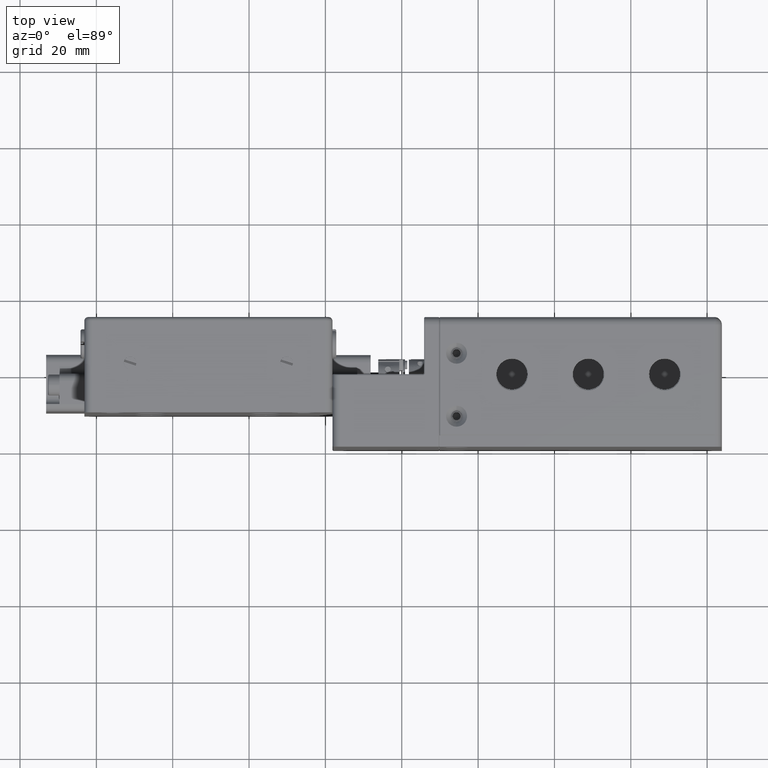
[diagram: clean part render]
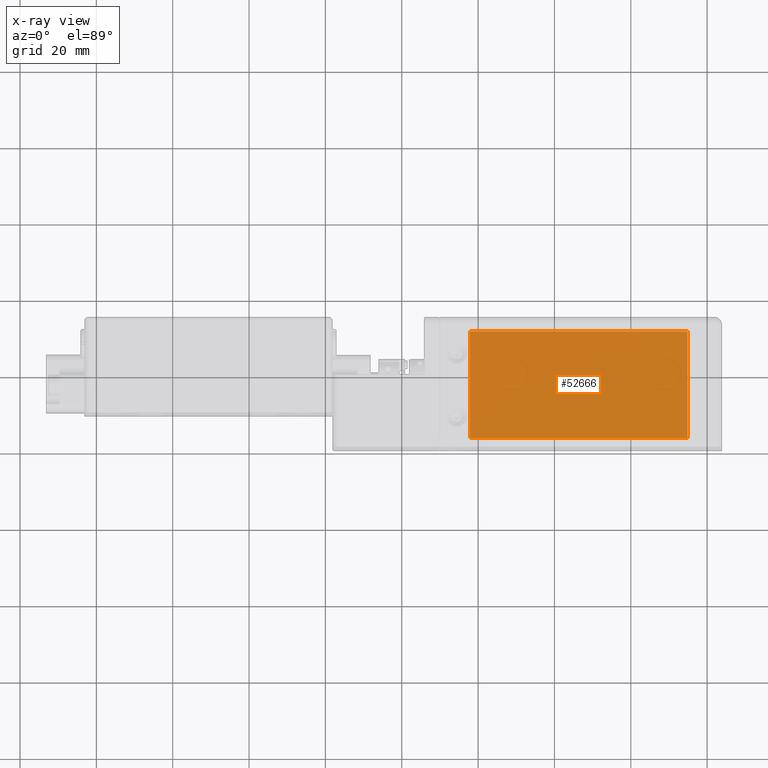
[diagram: x-ray — body ghosted, one internal face saturated and labeled with its STEP entity id]
A machine part, top view, then the same camera in x-ray: the body is ghosted and one INTERNAL B-rep face — a face not visible from any outside direction — is saturated and labeled: STEP entity #52666.
In plain terms, the highlighted planar face has unit normal (0, 0, 1).
Its self-contained STEP definition (entity closure, byte-faithful):
#712 = EDGE_CURVE ( 'NONE', #1862, #24658, #22003, .T. ) ;
#1204 = LINE ( 'NONE', #18175, #8462 ) ;
#1862 = VERTEX_POINT ( 'NONE', #50120 ) ;
#2852 = EDGE_CURVE ( 'NONE', #20213, #37276, #1204, .T. ) ;
#3995 = CARTESIAN_POINT ( 'NONE',  ( -82.15206144933929977, 31.74167847702480572, -14.00000000000000000 ) ) ;
#8462 = VECTOR ( 'NONE', #14005, 1000.000000000000000 ) ;
#10863 = ORIENTED_EDGE ( 'NONE', *, *, #2852, .F. ) ;
#11909 = DIRECTION ( 'NONE',  ( 0.000000000000000000, 0.000000000000000000, 1.000000000000000000 ) ) ;
#12479 = DIRECTION ( 'NONE',  ( 1.224646799147353947E-16, -1.000000000000000000, 0.000000000000000000 ) ) ;
#14005 = DIRECTION ( 'NONE',  ( 1.000000000000000000, 0.000000000000000000, 0.000000000000000000 ) ) ;
#16572 = EDGE_LOOP ( 'NONE', ( #41750, #21553, #35175, #10863 ) ) ;
#18175 = CARTESIAN_POINT ( 'NONE',  ( -82.15206144933929977, 3.741678477024794613, -14.00000000000000000 ) ) ;
#19414 = AXIS2_PLACEMENT_3D ( 'NONE', #29171, #11909, #24448 ) ;
#20166 = CARTESIAN_POINT ( 'NONE',  ( -25.15206144933934951, 3.741678477024794613, -14.00000000000000000 ) ) ;
#20213 = VERTEX_POINT ( 'NONE', #40154 ) ;
#21553 = ORIENTED_EDGE ( 'NONE', *, *, #712, .F. ) ;
#22003 = LINE ( 'NONE', #26729, #24195 ) ;
#23401 = DIRECTION ( 'NONE',  ( 0.000000000000000000, 1.000000000000000000, 0.000000000000000000 ) ) ;
#24195 = VECTOR ( 'NONE', #47323, 1000.000000000000000 ) ;
#24448 = DIRECTION ( 'NONE',  ( 1.000000000000000000, 0.000000000000000000, 0.000000000000000000 ) ) ;
#24658 = VERTEX_POINT ( 'NONE', #3995 ) ;
#26729 = CARTESIAN_POINT ( 'NONE',  ( -82.15206144933929977, 31.74167847702480572, -14.00000000000000000 ) ) ;
#29171 = CARTESIAN_POINT ( 'NONE',  ( -82.15206144933929977, 31.74167847702480572, -14.00000000000000000 ) ) ;
#32791 = PLANE ( 'NONE',  #19414 ) ;
#33348 = FACE_OUTER_BOUND ( 'NONE', #16572, .T. ) ;
#35175 = ORIENTED_EDGE ( 'NONE', *, *, #49436, .F. ) ;
#35291 = VECTOR ( 'NONE', #23401, 1000.000000000000000 ) ;
#37276 = VERTEX_POINT ( 'NONE', #20166 ) ;
#40154 = CARTESIAN_POINT ( 'NONE',  ( -82.15206144933929977, 3.741678477024794613, -14.00000000000000000 ) ) ;
#40294 = EDGE_CURVE ( 'NONE', #24658, #20213, #50331, .T. ) ;
#41750 = ORIENTED_EDGE ( 'NONE', *, *, #40294, .F. ) ;
#44357 = VECTOR ( 'NONE', #12479, 1000.000000000000000 ) ;
#44534 = CARTESIAN_POINT ( 'NONE',  ( -25.15206144933934951, 31.74167847702480572, -14.00000000000000000 ) ) ;
#47323 = DIRECTION ( 'NONE',  ( -1.000000000000000000, 0.000000000000000000, 0.000000000000000000 ) ) ;
#49436 = EDGE_CURVE ( 'NONE', #37276, #1862, #54249, .T. ) ;
#50120 = CARTESIAN_POINT ( 'NONE',  ( -25.15206144933934951, 31.74167847702480572, -14.00000000000000000 ) ) ;
#50331 = LINE ( 'NONE', #50605, #44357 ) ;
#50605 = CARTESIAN_POINT ( 'NONE',  ( -82.15206144933929977, 31.74167847702480572, -14.00000000000000000 ) ) ;
#52666 = ADVANCED_FACE ( 'NONE', ( #33348 ), #32791, .F. ) ;
#54249 = LINE ( 'NONE', #44534, #35291 ) ;